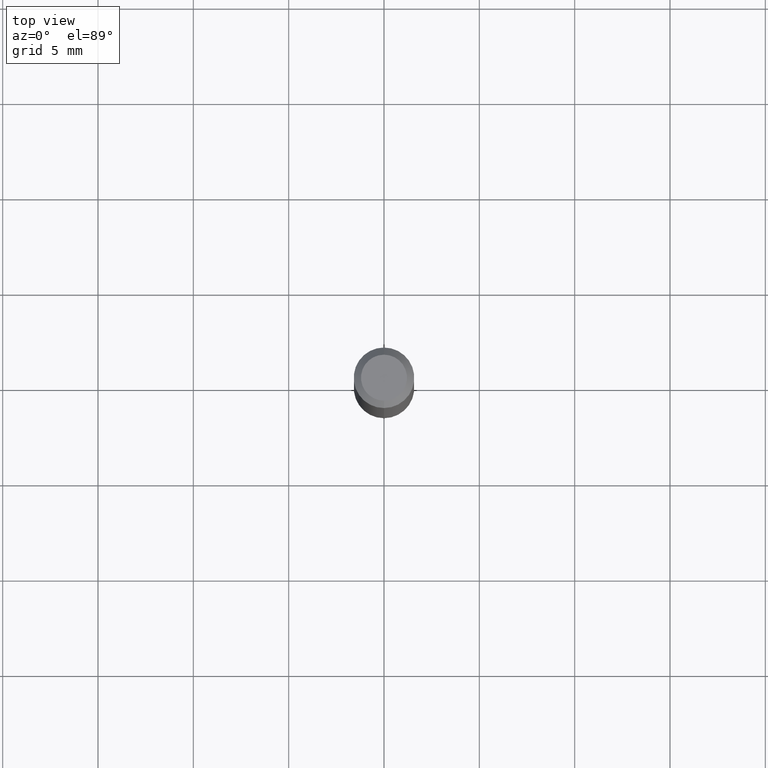
[diagram: clean part render]
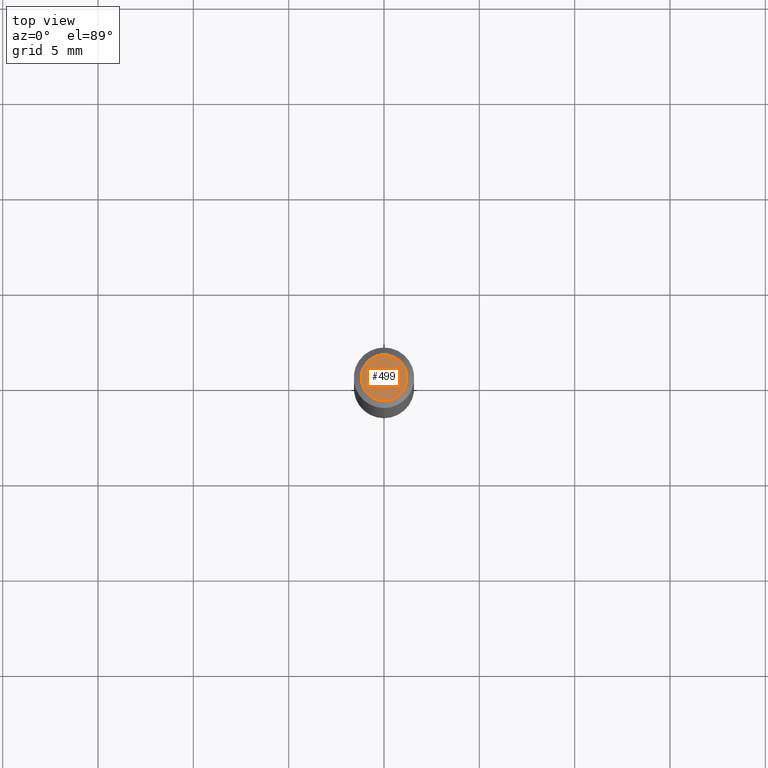
[diagram: same view with one face highlighted and labeled with its STEP entity id]
A machine part, top view. The second image highlights one B-rep face of the part: STEP entity #499.
In plain terms, the highlighted planar face has unit normal (0, -0, -1).
Its self-contained STEP definition (entity closure, byte-faithful):
#6 = DIRECTION ( 'NONE',  ( 6.982962677686265922E-15, 1.000000000000000000, -3.491469234703768583E-15 ) ) ;
#31 = DIRECTION ( 'NONE',  ( 2.445477258460487856E-29, -3.491469234703768583E-15, -1.000000000000000000 ) ) ;
#65 = ORIENTED_EDGE ( 'NONE', *, *, #396, .T. ) ;
#97 = CIRCLE ( 'NONE', #160, 0.04749999999999999362 ) ;
#160 = AXIS2_PLACEMENT_3D ( 'NONE', #361, #322, #476 ) ;
#175 = DIRECTION ( 'NONE',  ( -6.982962677686266711E-15, -1.000000000000000000, 3.491469234703768977E-15 ) ) ;
#215 = CARTESIAN_POINT ( 'NONE',  ( 3.840629472727447874E-16, 0.04749999999999999362, -1.747056831868805136E-16 ) ) ;
#233 = VERTEX_POINT ( 'NONE', #215 ) ;
#248 = VERTEX_POINT ( 'NONE', #291 ) ;
#289 = ORIENTED_EDGE ( 'NONE', *, *, #428, .T. ) ;
#290 = PLANE ( 'NONE',  #512 ) ;
#291 = CARTESIAN_POINT ( 'NONE',  ( -3.773273898774340269E-16, -0.04749999999999999362, 1.569838941099773992E-16 ) ) ;
#319 = DIRECTION ( 'NONE',  ( -2.445477258460488416E-29, 3.491469234703768188E-15, 1.000000000000000000 ) ) ;
#322 = DIRECTION ( 'NONE',  ( -2.445477258460488416E-29, 3.491469234703768188E-15, 1.000000000000000000 ) ) ;
#323 = CARTESIAN_POINT ( 'NONE',  ( 3.316907271900976096E-16, 0.04749999999999999362, -1.702752359176547227E-16 ) ) ;
#326 = EDGE_LOOP ( 'NONE', ( #289, #65 ) ) ;
#361 = CARTESIAN_POINT ( 'NONE',  ( 2.166911608339997140E-46, -3.093754067295817987E-32, -8.860894538451535659E-18 ) ) ;
#374 = CARTESIAN_POINT ( 'NONE',  ( 2.166911608339997140E-46, -3.093754067295817987E-32, -8.860894538451535659E-18 ) ) ;
#396 = EDGE_CURVE ( 'NONE', #248, #233, #465, .T. ) ;
#404 = AXIS2_PLACEMENT_3D ( 'NONE', #374, #319, #175 ) ;
#428 = EDGE_CURVE ( 'NONE', #233, #248, #97, .T. ) ;
#465 = CIRCLE ( 'NONE', #404, 0.04749999999999999362 ) ;
#476 = DIRECTION ( 'NONE',  ( -6.982962677686266711E-15, -1.000000000000000000, 3.491469234703768977E-15 ) ) ;
#479 = FACE_OUTER_BOUND ( 'NONE', #326, .T. ) ;
#499 = ADVANCED_FACE ( 'NONE', ( #479 ), #290, .F. ) ;
#512 = AXIS2_PLACEMENT_3D ( 'NONE', #323, #31, #6 ) ;